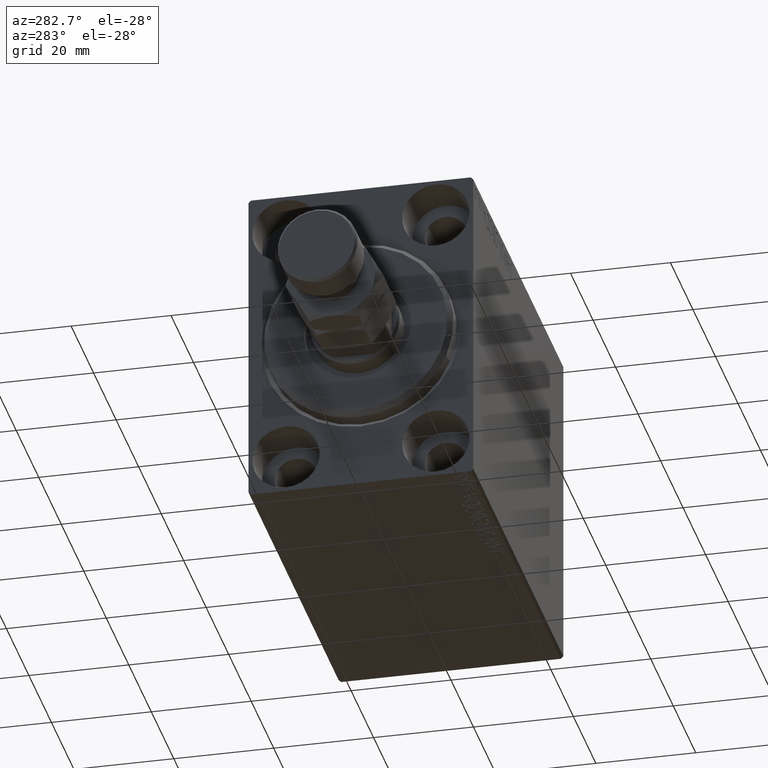
[diagram: clean part render]
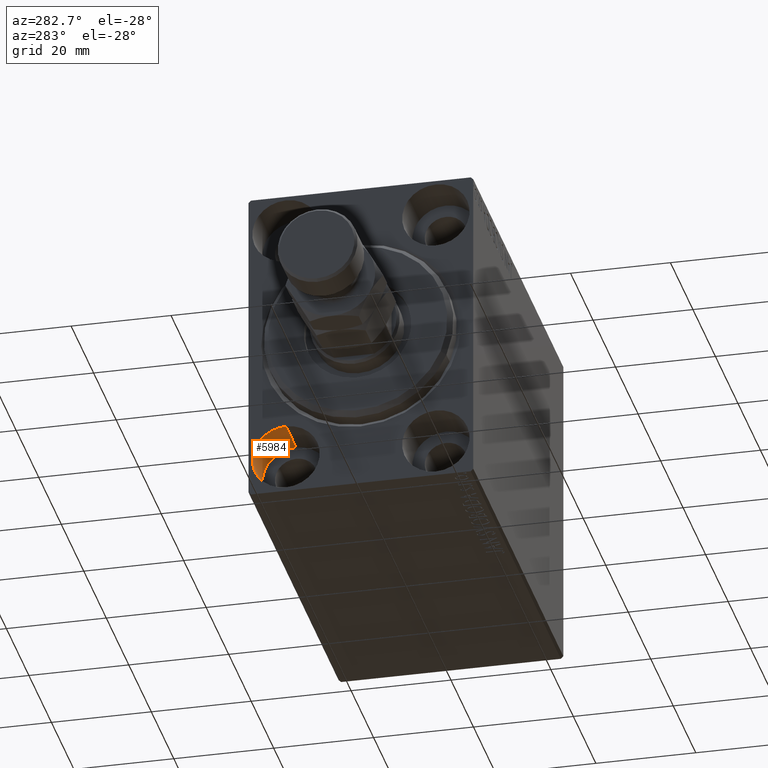
[diagram: same view with one face highlighted and labeled with its STEP entity id]
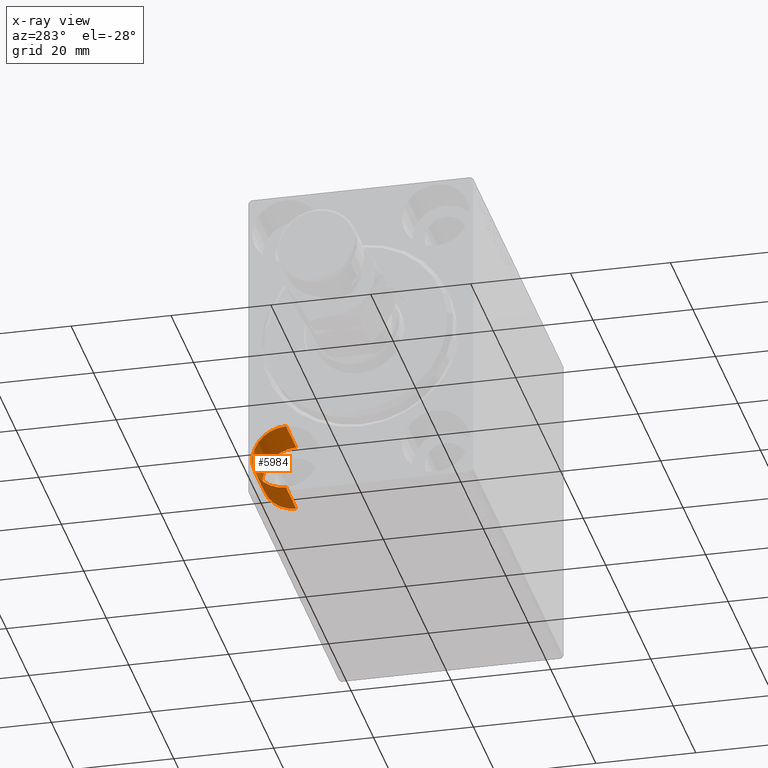
[diagram: x-ray of the same camera — body ghosted, the highlighted face saturated]
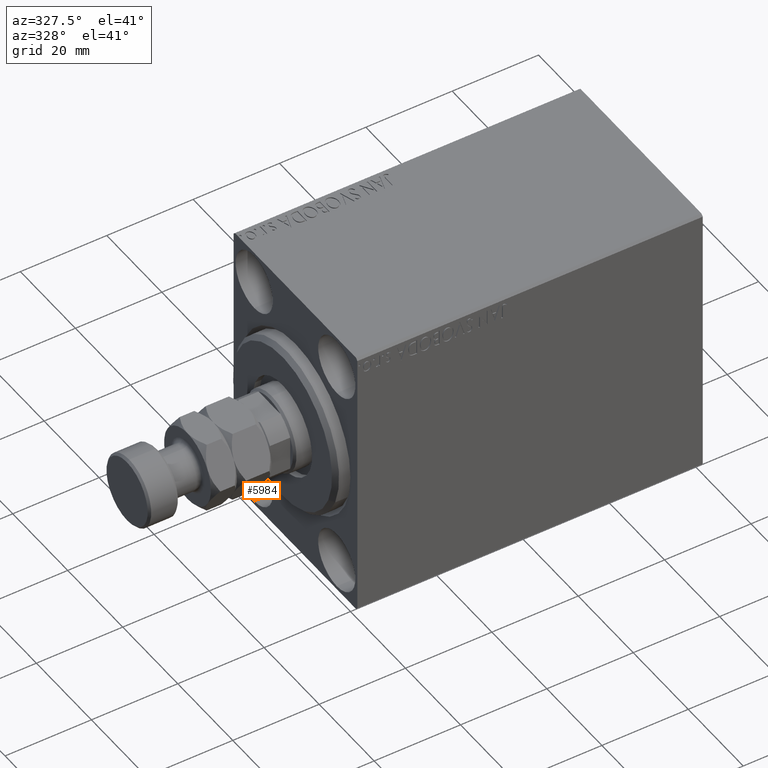
[diagram: same view with one face highlighted and labeled with its STEP entity id]
A machine part, auxiliary view. The second image highlights one B-rep face of the part: STEP entity #5984.
The next image is the same camera in x-ray: the body ghosted, the highlighted face saturated — about 0% of this face is hidden behind the body in this view.
A second angle (auxiliary view) of the same face is appended — the face is thin or edge-on in the first view.
In plain terms, the highlighted cylindrical surface (edge-blend (fillet) strip) has radius 6.75 mm, axis along (-1, -0, -0).
Its self-contained STEP definition (entity closure, byte-faithful):
#3020 = CIRCLE ( 'NONE', #27946, 6.749999999999999112 ) ;
#3789 = VERTEX_POINT ( 'NONE', #35468 ) ;
#4575 = VECTOR ( 'NONE', #29366, 1000.000000000000000 ) ;
#5306 = CYLINDRICAL_SURFACE ( 'NONE', #6544, 6.749999999999999112 ) ;
#5984 = ADVANCED_FACE ( 'NONE', ( #22747 ), #5306, .F. ) ;
#6053 = DIRECTION ( 'NONE',  ( -1.000000000000000000, -0.000000000000000000, -0.000000000000000000 ) ) ;
#6544 = AXIS2_PLACEMENT_3D ( 'NONE', #33333, #43894, #9192 ) ;
#7047 = CARTESIAN_POINT ( 'NONE',  ( 0.000000000000000000, 14.99999999999999645, -18.25000000000000355 ) ) ;
#8379 = DIRECTION ( 'NONE',  ( -1.000000000000000000, 0.000000000000000000, 0.000000000000000000 ) ) ;
#8814 = LINE ( 'NONE', #30384, #11831 ) ;
#9192 = DIRECTION ( 'NONE',  ( 0.000000000000000000, 0.000000000000000000, 1.000000000000000000 ) ) ;
#10927 = VERTEX_POINT ( 'NONE', #29118 ) ;
#11831 = VECTOR ( 'NONE', #6053, 1000.000000000000000 ) ;
#12034 = CARTESIAN_POINT ( 'NONE',  ( 9.000000000000000000, 14.99999999999999645, -18.25000000000000355 ) ) ;
#12674 = AXIS2_PLACEMENT_3D ( 'NONE', #20459, #27564, #31250 ) ;
#14641 = ORIENTED_EDGE ( 'NONE', *, *, #45307, .F. ) ;
#15338 = LINE ( 'NONE', #22929, #4575 ) ;
#16539 = VERTEX_POINT ( 'NONE', #7047 ) ;
#19275 = CIRCLE ( 'NONE', #12674, 6.749999999999999112 ) ;
#20459 = CARTESIAN_POINT ( 'NONE',  ( 9.000000000000000000, 14.99999999999999645, -25.00000000000000000 ) ) ;
#21936 = EDGE_LOOP ( 'NONE', ( #22997, #14641, #24022, #25644 ) ) ;
#22747 = FACE_OUTER_BOUND ( 'NONE', #21936, .T. ) ;
#22881 = EDGE_CURVE ( 'NONE', #16539, #10927, #3020, .T. ) ;
#22929 = CARTESIAN_POINT ( 'NONE',  ( 9.000000000000000000, 14.99999999999999645, -18.25000000000000355 ) ) ;
#22997 = ORIENTED_EDGE ( 'NONE', *, *, #24777, .F. ) ;
#24022 = ORIENTED_EDGE ( 'NONE', *, *, #44901, .T. ) ;
#24777 = EDGE_CURVE ( 'NONE', #3789, #10927, #8814, .T. ) ;
#25644 = ORIENTED_EDGE ( 'NONE', *, *, #22881, .T. ) ;
#27564 = DIRECTION ( 'NONE',  ( -1.000000000000000000, 0.000000000000000000, 0.000000000000000000 ) ) ;
#27946 = AXIS2_PLACEMENT_3D ( 'NONE', #32276, #8379, #42864 ) ;
#29118 = CARTESIAN_POINT ( 'NONE',  ( 0.000000000000000000, 14.99999999999999645, -31.75000000000000000 ) ) ;
#29366 = DIRECTION ( 'NONE',  ( -1.000000000000000000, -0.000000000000000000, -0.000000000000000000 ) ) ;
#30384 = CARTESIAN_POINT ( 'NONE',  ( 9.000000000000000000, 14.99999999999999645, -31.75000000000000000 ) ) ;
#31250 = DIRECTION ( 'NONE',  ( 0.000000000000000000, 0.000000000000000000, 1.000000000000000000 ) ) ;
#32276 = CARTESIAN_POINT ( 'NONE',  ( 0.000000000000000000, 14.99999999999999645, -25.00000000000000000 ) ) ;
#33333 = CARTESIAN_POINT ( 'NONE',  ( 9.000000000000000000, 14.99999999999999645, -25.00000000000000000 ) ) ;
#35468 = CARTESIAN_POINT ( 'NONE',  ( 9.000000000000000000, 14.99999999999999645, -31.75000000000000000 ) ) ;
#36558 = VERTEX_POINT ( 'NONE', #12034 ) ;
#42864 = DIRECTION ( 'NONE',  ( 0.000000000000000000, 0.000000000000000000, 1.000000000000000000 ) ) ;
#43894 = DIRECTION ( 'NONE',  ( -1.000000000000000000, -0.000000000000000000, -0.000000000000000000 ) ) ;
#44901 = EDGE_CURVE ( 'NONE', #36558, #16539, #15338, .T. ) ;
#45307 = EDGE_CURVE ( 'NONE', #36558, #3789, #19275, .T. ) ;